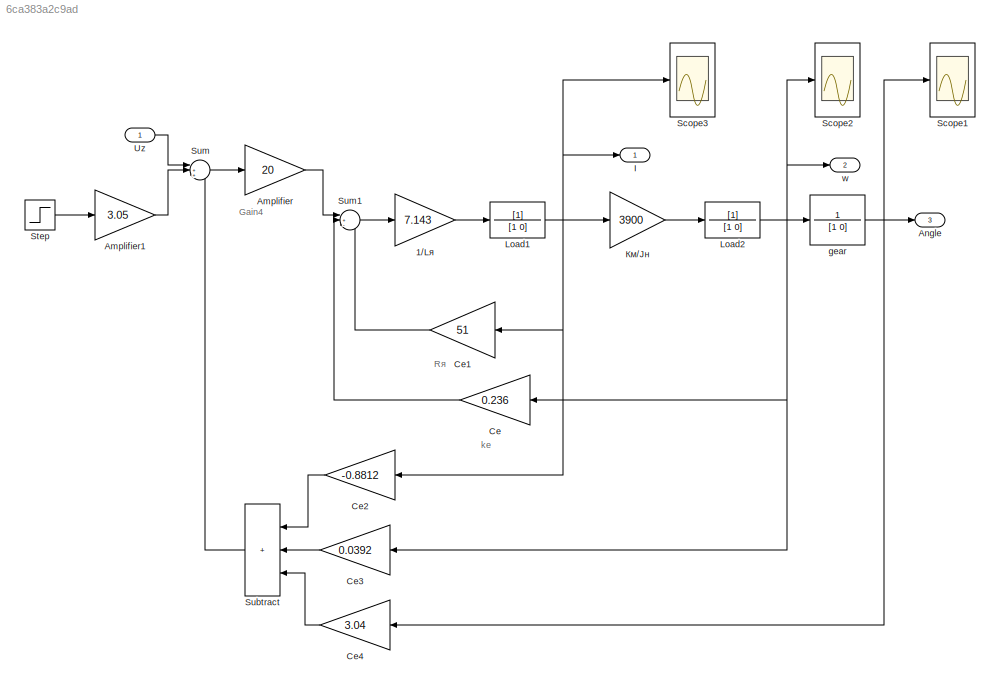
MODEL slx_6ca383a2c9ad
KIND model
CONFIG AbsTol = auto
CONFIG EnableMultiTasking = off
CONFIG FixedStep = auto
CONFIG MaxStep = auto
CONFIG MinStep = auto
CONFIG RelTol = 1e-3
CONFIG SampleTimeConstraint = Unconstrained
CONFIG SolverName = VariableStepAuto
CONFIG StartTime = 0.0
CONFIG StopTime = 0.1
BLOCK [Gain] 1//Lя
  Gain = 7.143
BLOCK [Gain] Amplifier
  Gain = 20
BLOCK [Gain] Amplifier1
  Gain = 3.05
BLOCK [Outport] Angle
  Port = 3
BLOCK [Gain] Ce
  Gain = 0.236
BLOCK [Gain] Ce1
  Gain = 51
BLOCK [Gain] Ce2
  Gain = -0.8812
BLOCK [Gain] Ce3
  Gain = 0.0392
BLOCK [Gain] Ce4
  Gain = 3.04
BLOCK [Outport] I
BLOCK [TransferFcn] Load1
  Denominator = [1 0]
BLOCK [TransferFcn] Load2
  Denominator = [1 0]
BLOCK [Scope] Scope1
  Floating = off
  NumInputPorts = 1
  Ports = [1]
  ScopeSpecificationString = Simulink.scopes.TimeScopeBlockCfg('CurrentConfiguration', extmgr.ConfigurationSet(extmgr.Configuration('Core','General UI',true,'FigureColor',[1 1 1]),extmgr.Configuration('Core','Source UI',true),extmgr.Configuration('Sources','WiredSimulink',true,'DataLoggingVariableName','ScopeData2'),extmgr.Configuration('Visuals','Time Domain',true,'SerializedDisplays',{struct('MinYLimReal','-0.13515','MaxYLi...<+1768ch>
BLOCK [Scope] Scope2
  Floating = off
  NumInputPorts = 1
  Ports = [1]
  ScopeSpecificationString = Simulink.scopes.TimeScopeBlockCfg('CurrentConfiguration', extmgr.ConfigurationSet(extmgr.Configuration('Core','General UI',true,'FigureColor',[1 1 1]),extmgr.Configuration('Core','Source UI',true),extmgr.Configuration('Sources','WiredSimulink',true,'DataLoggingVariableName','ScopeData1'),extmgr.Configuration('Visuals','Time Domain',true,'SerializedDisplays',{struct('MinYLimReal','-30.58253','MaxYL...<+1798ch>
BLOCK [Scope] Scope3
  Floating = off
  NumInputPorts = 1
  Ports = [1]
  ScopeSpecificationString = Simulink.scopes.TimeScopeBlockCfg('CurrentConfiguration', extmgr.ConfigurationSet(extmgr.Configuration('Core','General UI',true,'FigureColor',[1 1 1]),extmgr.Configuration('Core','Source UI',true),extmgr.Configuration('Sources','WiredSimulink',true),extmgr.Configuration('Visuals','Time Domain',true,'SerializedDisplays',{struct('MinYLimReal','-0.93338','MaxYLimReal','1.3797','YLabelReal','I, A','Mi...<+1659ch>
BLOCK [Step] Step
  SampleTime = 0
  Time = 0
BLOCK [Sum] Subtract
  IconShape = rectangular
  Inputs = +++
  Ports = [3, 1]
BLOCK [Sum] Sum
  Inputs = |++-
  Ports = [3, 1]
BLOCK [Sum] Sum1
  Inputs = |+--
  Ports = [3, 1]
BLOCK [Inport] Uz
BLOCK [TransferFcn] gear
  Denominator = [1 0]
  Numerator = 1
BLOCK [Outport] w
  Port = 2
BLOCK [Gain] Км//Jн
  Gain = 3900
ANNOTATION (root): Rя
ANNOTATION (root): Gain4
ANNOTATION (root): kе
LINE 1//Lя:1 -> Load1:1
LINE Amplifier1:1 -> Sum:2
LINE Amplifier:1 -> Sum1:1
LINE Ce1:1 -> Sum1:3
LINE Ce2:1 -> Subtract:1
LINE Ce3:1 -> Subtract:2
LINE Ce4:1 -> Subtract:3
LINE Ce:1 -> Sum1:2
NET Load1:1 -> Ce1:1, Ce2:1, I:1, Scope3:1, Км//Jн:1
NET Load2:1 -> Ce3:1, Ce:1, Scope2:1, gear:1, w:1
LINE Step:1 -> Amplifier1:1
LINE Subtract:1 -> Sum:3
LINE Sum1:1 -> 1//Lя:1
LINE Sum:1 -> Amplifier:1
LINE Uz:1 -> Sum:1
NET gear:1 -> Angle:1, Ce4:1, Scope1:1
LINE Км//Jн:1 -> Load2:1
note: NET lines group one-source signal fan-out (src -> all destinations, sorted); 1:1 wires keep LINE
